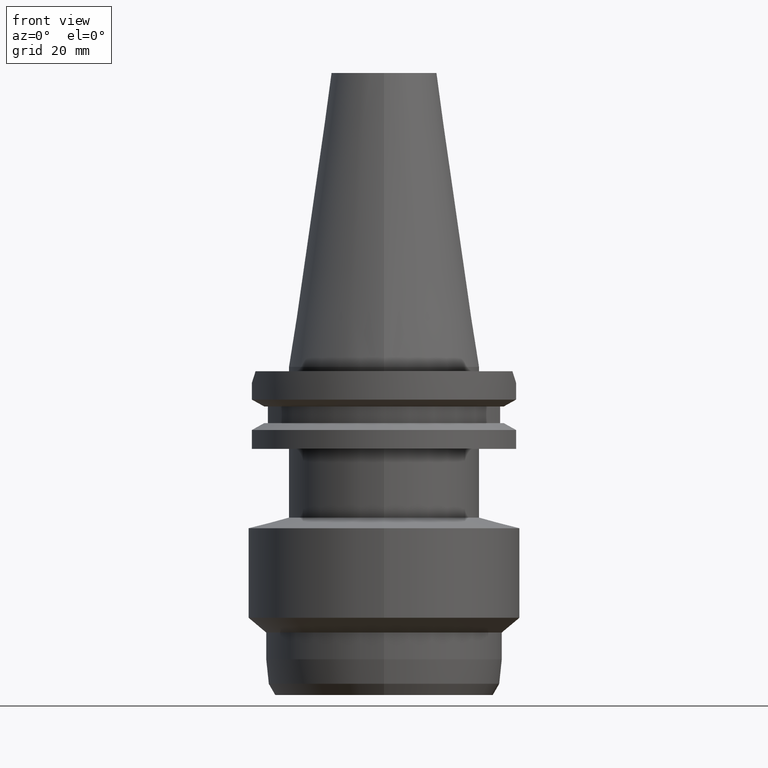
[diagram: clean part render]
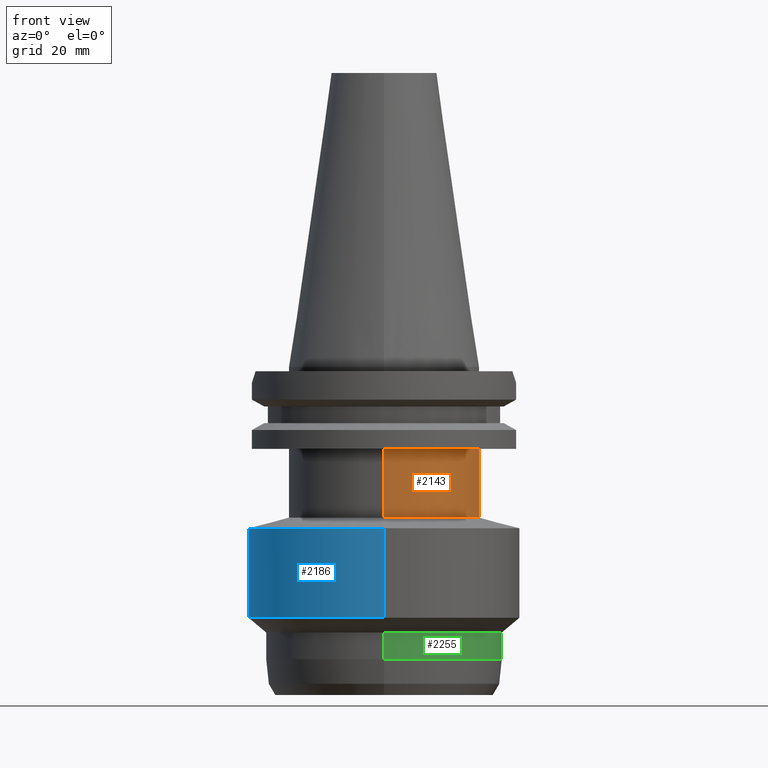
[diagram: same view with three faces highlighted in distinct colors, each labeled with its STEP entity id]
A machine part, front view with three faces highlighted in distinct colors.
Their STEP definitions:

[orange] entity #2143 — the highlighted cylindrical surface (partial cylindrical patch) has radius 22.225 mm, axis along (0, 0, -1).
#259=CARTESIAN_POINT('',(0.E0,2.148918354634E-14,-1.905E1));
#260=DIRECTION('',(0.E0,0.E0,-1.E0));
#261=DIRECTION('',(0.E0,1.E0,0.E0));
#262=AXIS2_PLACEMENT_3D('',#259,#260,#261);
#848=DIRECTION('',(0.E0,1.091429280635E-14,-1.E0));
#849=VECTOR('',#848,1.595E1);
#850=CARTESIAN_POINT('',(0.E0,-2.2225E1,-1.905E1));
#851=LINE('',#850,#849);
#855=DIRECTION('',(0.E0,-1.113703347586E-14,-1.E0));
#856=VECTOR('',#855,1.595E1);
#857=CARTESIAN_POINT('',(0.E0,2.2225E1,-1.905E1));
#858=LINE('',#857,#856);
#877=CARTESIAN_POINT('',(0.E0,0.E0,-3.5E1));
#878=DIRECTION('',(0.E0,0.E0,1.E0));
#879=DIRECTION('',(0.E0,-1.E0,0.E0));
#880=AXIS2_PLACEMENT_3D('',#877,#878,#879);
#1374=CARTESIAN_POINT('',(0.E0,2.2225E1,-3.5E1));
#1375=VERTEX_POINT('',#1374);
#1376=CARTESIAN_POINT('',(0.E0,-2.2225E1,-3.5E1));
#1377=VERTEX_POINT('',#1376);
#1378=CARTESIAN_POINT('',(0.E0,2.2225E1,-1.905E1));
#1379=VERTEX_POINT('',#1378);
#1380=CARTESIAN_POINT('',(0.E0,-2.2225E1,-1.905E1));
#1381=VERTEX_POINT('',#1380);
#2131=CARTESIAN_POINT('',(0.E0,2.148918354634E-14,7.54725E1));
#2132=DIRECTION('',(0.E0,0.E0,-1.E0));
#2133=DIRECTION('',(0.E0,-1.E0,0.E0));
#2134=AXIS2_PLACEMENT_3D('',#2131,#2132,#2133);
#2135=CYLINDRICAL_SURFACE('',#2134,2.2225E1);
#2136=ORIENTED_EDGE('',*,*,#2121,.T.);
#2138=ORIENTED_EDGE('',*,*,#2137,.F.);
#2139=ORIENTED_EDGE('',*,*,#2124,.F.);
#2140=ORIENTED_EDGE('',*,*,#1669,.F.);
#2141=EDGE_LOOP('',(#2136,#2138,#2139,#2140));
#2142=FACE_OUTER_BOUND('',#2141,.F.);
#263=CIRCLE('',#262,2.2225E1);
#881=CIRCLE('',#880,2.2225E1);
#1669=EDGE_CURVE('',#1379,#1381,#263,.T.);
#2121=EDGE_CURVE('',#1379,#1375,#858,.T.);
#2124=EDGE_CURVE('',#1381,#1377,#851,.T.);
#2137=EDGE_CURVE('',#1377,#1375,#881,.T.);
#2143=ADVANCED_FACE('',(#2142),#2135,.T.);

[blue] entity #2186 — the highlighted cylindrical surface (partial cylindrical patch) has radius 31.45 mm, axis along (0, 0, -1).
#900=CARTESIAN_POINT('',(0.E0,0.E0,-3.747183130018E1));
#901=DIRECTION('',(0.E0,0.E0,-1.E0));
#902=DIRECTION('',(0.E0,-1.E0,0.E0));
#903=AXIS2_PLACEMENT_3D('',#900,#901,#902);
#908=DIRECTION('',(0.E0,0.E0,-1.E0));
#909=VECTOR('',#908,2.078616869982E1);
#910=CARTESIAN_POINT('',(0.E0,-3.145E1,-3.747183130018E1));
#911=LINE('',#910,#909);
#915=DIRECTION('',(0.E0,0.E0,-1.E0));
#916=VECTOR('',#915,2.078616869982E1);
#917=CARTESIAN_POINT('',(0.E0,3.145E1,-3.747183130018E1));
#918=LINE('',#917,#916);
#945=CARTESIAN_POINT('',(0.E0,0.E0,-5.8258E1));
#946=DIRECTION('',(0.E0,0.E0,1.E0));
#947=DIRECTION('',(0.E0,1.E0,0.E0));
#948=AXIS2_PLACEMENT_3D('',#945,#946,#947);
#1366=CARTESIAN_POINT('',(0.E0,3.145E1,-5.8258E1));
#1367=VERTEX_POINT('',#1366);
#1368=CARTESIAN_POINT('',(0.E0,-3.145E1,-5.8258E1));
#1369=VERTEX_POINT('',#1368);
#1370=CARTESIAN_POINT('',(0.E0,3.145E1,-3.747183130018E1));
#1371=VERTEX_POINT('',#1370);
#1372=CARTESIAN_POINT('',(0.E0,-3.145E1,-3.747183130018E1));
#1373=VERTEX_POINT('',#1372);
#2172=CARTESIAN_POINT('',(0.E0,2.148918354634E-14,7.54725E1));
#2173=DIRECTION('',(0.E0,0.E0,-1.E0));
#2174=DIRECTION('',(0.E0,-1.E0,0.E0));
#2175=AXIS2_PLACEMENT_3D('',#2172,#2173,#2174);
#2176=CYLINDRICAL_SURFACE('',#2175,3.145E1);
#2178=ORIENTED_EDGE('',*,*,#2177,.F.);
#2179=ORIENTED_EDGE('',*,*,#2167,.F.);
#2181=ORIENTED_EDGE('',*,*,#2180,.T.);
#2183=ORIENTED_EDGE('',*,*,#2182,.F.);
#2184=EDGE_LOOP('',(#2178,#2179,#2181,#2183));
#2185=FACE_OUTER_BOUND('',#2184,.F.);
#904=CIRCLE('',#903,3.145E1);
#949=CIRCLE('',#948,3.145E1);
#2167=EDGE_CURVE('',#1373,#1371,#904,.T.);
#2177=EDGE_CURVE('',#1371,#1367,#918,.T.);
#2180=EDGE_CURVE('',#1373,#1369,#911,.T.);
#2182=EDGE_CURVE('',#1367,#1369,#949,.T.);
#2186=ADVANCED_FACE('',(#2185),#2176,.T.);

[green] entity #2255 — the highlighted cylindrical surface (partial cylindrical patch) has radius 27.5 mm, axis along (0, 0, -1).
#929=CARTESIAN_POINT('',(0.E0,0.E0,-6.169325639344E1));
#930=DIRECTION('',(0.E0,0.E0,-1.E0));
#931=DIRECTION('',(0.E0,1.E0,0.E0));
#932=AXIS2_PLACEMENT_3D('',#929,#930,#931);
#968=DIRECTION('',(0.E0,8.972157818815E-14,-1.E0));
#969=VECTOR('',#968,6.216743606560E0);
#970=CARTESIAN_POINT('',(0.E0,-2.75E1,-6.169325639344E1));
#971=LINE('',#970,#969);
#975=DIRECTION('',(0.E0,-8.915010316784E-14,-1.E0));
#976=VECTOR('',#975,6.216743606560E0);
#977=CARTESIAN_POINT('',(0.E0,2.75E1,-6.169325639344E1));
#978=LINE('',#977,#976);
#989=CARTESIAN_POINT('',(0.E0,0.E0,-6.791E1));
#990=DIRECTION('',(0.E0,0.E0,1.E0));
#991=DIRECTION('',(0.E0,-1.E0,0.E0));
#992=AXIS2_PLACEMENT_3D('',#989,#990,#991);
#1358=CARTESIAN_POINT('',(0.E0,2.75E1,-6.791E1));
#1359=VERTEX_POINT('',#1358);
#1360=CARTESIAN_POINT('',(0.E0,-2.75E1,-6.791E1));
#1361=VERTEX_POINT('',#1360);
#1362=CARTESIAN_POINT('',(0.E0,2.75E1,-6.169325639344E1));
#1363=VERTEX_POINT('',#1362);
#1364=CARTESIAN_POINT('',(0.E0,-2.75E1,-6.169325639344E1));
#1365=VERTEX_POINT('',#1364);
#2243=CARTESIAN_POINT('',(0.E0,2.148918354634E-14,7.54725E1));
#2244=DIRECTION('',(0.E0,0.E0,-1.E0));
#2245=DIRECTION('',(0.E0,-1.E0,0.E0));
#2246=AXIS2_PLACEMENT_3D('',#2243,#2244,#2245);
#2247=CYLINDRICAL_SURFACE('',#2246,2.75E1);
#2248=ORIENTED_EDGE('',*,*,#2233,.T.);
#2250=ORIENTED_EDGE('',*,*,#2249,.F.);
#2251=ORIENTED_EDGE('',*,*,#2236,.F.);
#2252=ORIENTED_EDGE('',*,*,#2207,.F.);
#2253=EDGE_LOOP('',(#2248,#2250,#2251,#2252));
#2254=FACE_OUTER_BOUND('',#2253,.F.);
#933=CIRCLE('',#932,2.75E1);
#993=CIRCLE('',#992,2.75E1);
#2207=EDGE_CURVE('',#1363,#1365,#933,.T.);
#2233=EDGE_CURVE('',#1363,#1359,#978,.T.);
#2236=EDGE_CURVE('',#1365,#1361,#971,.T.);
#2249=EDGE_CURVE('',#1361,#1359,#993,.T.);
#2255=ADVANCED_FACE('',(#2254),#2247,.T.);